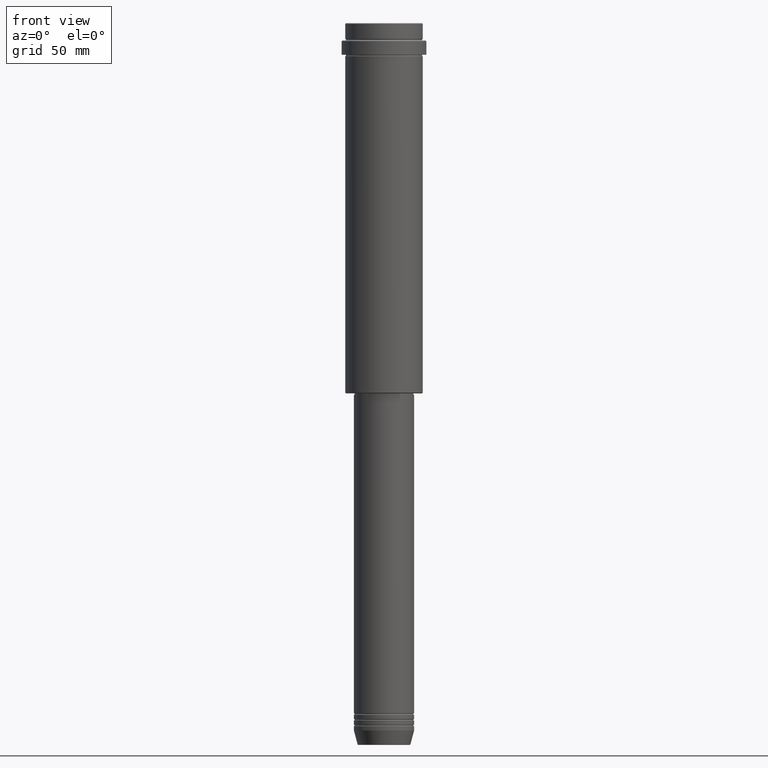
[diagram: clean part render]
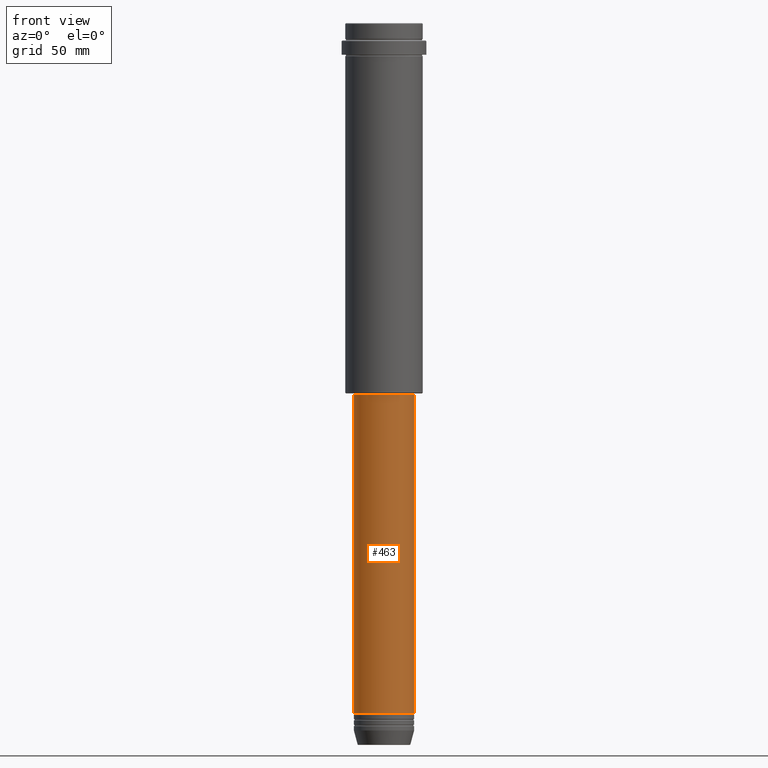
[diagram: same view with one face highlighted and labeled with its STEP entity id]
A machine part, front view. The second image highlights one B-rep face of the part: STEP entity #463.
In plain terms, the highlighted cylindrical surface (edge-blend (fillet) strip) has radius 21 mm, axis along (-0, -0, 1).
Its self-contained STEP definition (entity closure, byte-faithful):
#74 = DIRECTION ( 'NONE',  ( 1.000000000000000000, 0.000000000000000000, 0.000000000000000000 ) ) ;
#84 = DIRECTION ( 'NONE',  ( -0.000000000000000000, -0.000000000000000000, 1.000000000000000000 ) ) ;
#88 = VERTEX_POINT ( 'NONE', #1323 ) ;
#89 = AXIS2_PLACEMENT_3D ( 'NONE', #541, #84, #74 ) ;
#126 = LINE ( 'NONE', #1170, #1040 ) ;
#241 = FACE_OUTER_BOUND ( 'NONE', #1102, .T. ) ;
#276 = EDGE_CURVE ( 'NONE', #1120, #88, #344, .T. ) ;
#324 = ORIENTED_EDGE ( 'NONE', *, *, #1362, .F. ) ;
#344 = CIRCLE ( 'NONE', #477, 21.00000000000000000 ) ;
#367 = LINE ( 'NONE', #798, #814 ) ;
#432 = CARTESIAN_POINT ( 'NONE',  ( -21.00000000000000000, 2.571758278209441661E-15, -259.0000000000000000 ) ) ;
#455 = DIRECTION ( 'NONE',  ( 1.000000000000000000, 0.000000000000000000, 0.000000000000000000 ) ) ;
#463 = ADVANCED_FACE ( 'NONE', ( #241 ), #551, .T. ) ;
#477 = AXIS2_PLACEMENT_3D ( 'NONE', #829, #951, #813 ) ;
#478 = AXIS2_PLACEMENT_3D ( 'NONE', #681, #991, #455 ) ;
#510 = ORIENTED_EDGE ( 'NONE', *, *, #276, .T. ) ;
#541 = CARTESIAN_POINT ( 'NONE',  ( 0.000000000000000000, 0.000000000000000000, -259.0000000000000000 ) ) ;
#551 = CYLINDRICAL_SURFACE ( 'NONE', #478, 21.00000000000000000 ) ;
#681 = CARTESIAN_POINT ( 'NONE',  ( 0.000000000000000000, 0.000000000000000000, 0.000000000000000000 ) ) ;
#709 = DIRECTION ( 'NONE',  ( -0.000000000000000000, -0.000000000000000000, 1.000000000000000000 ) ) ;
#722 = CARTESIAN_POINT ( 'NONE',  ( 21.00000000000000000, 0.000000000000000000, -259.0000000000000000 ) ) ;
#798 = CARTESIAN_POINT ( 'NONE',  ( 21.00000000000000000, 0.000000000000000000, 0.000000000000000000 ) ) ;
#802 = VERTEX_POINT ( 'NONE', #432 ) ;
#813 = DIRECTION ( 'NONE',  ( 1.000000000000000000, 0.000000000000000000, 0.000000000000000000 ) ) ;
#814 = VECTOR ( 'NONE', #709, 1000.000000000000000 ) ;
#829 = CARTESIAN_POINT ( 'NONE',  ( 0.000000000000000000, 0.000000000000000000, -480.9999999999998863 ) ) ;
#871 = ORIENTED_EDGE ( 'NONE', *, *, #1134, .F. ) ;
#951 = DIRECTION ( 'NONE',  ( -0.000000000000000000, -0.000000000000000000, 1.000000000000000000 ) ) ;
#991 = DIRECTION ( 'NONE',  ( -0.000000000000000000, -0.000000000000000000, 1.000000000000000000 ) ) ;
#1026 = CARTESIAN_POINT ( 'NONE',  ( -21.00000000000000000, 2.571758278209441661E-15, -480.9999999999998863 ) ) ;
#1040 = VECTOR ( 'NONE', #1041, 1000.000000000000000 ) ;
#1041 = DIRECTION ( 'NONE',  ( -0.000000000000000000, -0.000000000000000000, 1.000000000000000000 ) ) ;
#1072 = CIRCLE ( 'NONE', #89, 21.00000000000000000 ) ;
#1102 = EDGE_LOOP ( 'NONE', ( #871, #510, #1416, #324 ) ) ;
#1119 = EDGE_CURVE ( 'NONE', #88, #1207, #367, .T. ) ;
#1120 = VERTEX_POINT ( 'NONE', #1026 ) ;
#1134 = EDGE_CURVE ( 'NONE', #1120, #802, #126, .T. ) ;
#1170 = CARTESIAN_POINT ( 'NONE',  ( -21.00000000000000000, 2.571758278209441661E-15, 0.000000000000000000 ) ) ;
#1207 = VERTEX_POINT ( 'NONE', #722 ) ;
#1323 = CARTESIAN_POINT ( 'NONE',  ( 21.00000000000000000, 0.000000000000000000, -480.9999999999998863 ) ) ;
#1362 = EDGE_CURVE ( 'NONE', #802, #1207, #1072, .T. ) ;
#1416 = ORIENTED_EDGE ( 'NONE', *, *, #1119, .T. ) ;